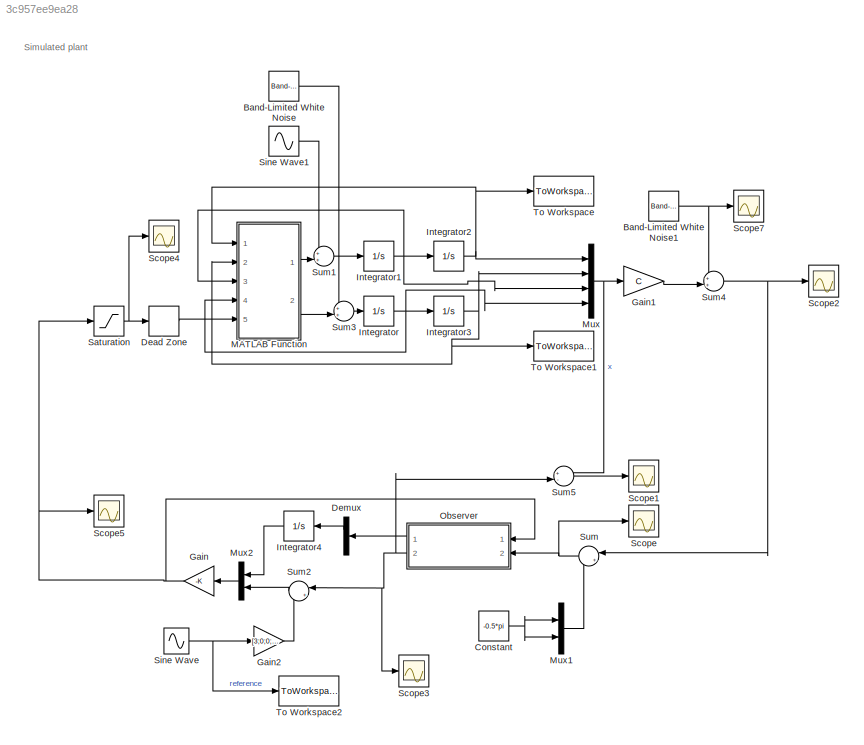
MODEL slx_3c957ee9ea28
KIND model
CONFIG AbsTol = auto
CONFIG EnableMultiTasking = on
CONFIG FixedStep = h
CONFIG MaxStep = auto
CONFIG MinStep = auto
CONFIG RelTol = 1e-3
CONFIG SampleTimeConstraint = Unconstrained
CONFIG Solver = FixedStepAuto
CONFIG SolverName = FixedStepAuto
CONFIG StartTime = 0.0
CONFIG StopTime = 200
BLOCK [Reference] Band-Limited White Noise  REF=simulink/Sources/Band-Limited
White Noise
  Ports = [0, 1]
  SourceBlock = simulink/Sources/Band-Limited\nWhite Noise
  SourceProductBaseCode = SL
  SourceProductName = Simulink
  SourceType = Band-Limited White Noise.
BLOCK [Reference] Band-Limited White Noise1  REF=simulink/Sources/Band-Limited
White Noise
  Ports = [0, 1]
  SourceBlock = simulink/Sources/Band-Limited\nWhite Noise
  SourceProductBaseCode = SL
  SourceProductName = Simulink
  SourceType = Band-Limited White Noise.
BLOCK [Constant] Constant
  Value = -0.5*pi
BLOCK [DeadZone] Dead Zone
  LowerValue = -0.3
  UpperValue = 0.3
BLOCK [Demux] Demux
  DisplayOption = bar
  Outputs = 2
  Ports = [1, 2]
BLOCK [Gain] Gain
  Gain = -K
  Multiplication = Matrix(K*u)
  OutDataTypeStr = Inherit: Inherit via internal rule
  ParamDataTypeStr = Inherit: Inherit via internal rule
  SaturateOnIntegerOverflow = off
BLOCK [Gain] Gain1
  Gain = C
  Multiplication = Matrix(K*u)
  OutDataTypeStr = Inherit: Inherit via internal rule
  ParamDataTypeStr = Inherit: Inherit via internal rule
  SaturateOnIntegerOverflow = off
BLOCK [Gain] Gain2
  Gain = [3;0;0;0]
  OutDataTypeStr = Inherit: Inherit via internal rule
  ParamDataTypeStr = Inherit: Inherit via internal rule
  SaturateOnIntegerOverflow = off
BLOCK [Integrator] Integrator
  InitialCondition = x0(4)
  Ports = [1, 1]
BLOCK [Integrator] Integrator1
  InitialCondition = x0(3)
  Ports = [1, 1]
BLOCK [Integrator] Integrator2
  InitialCondition = x0(1)
  Ports = [1, 1]
  WrapState = on
BLOCK [Integrator] Integrator3
  InitialCondition = x0(2)
  Ports = [1, 1]
  WrapState = on
BLOCK [Integrator] Integrator4
  Ports = [1, 1]
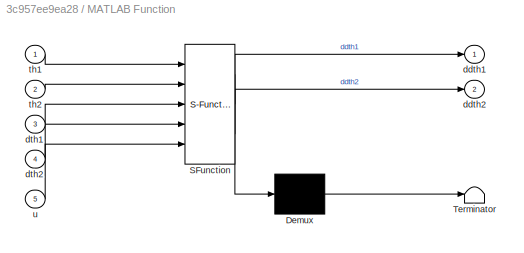
BLOCK [SubSystem] MATLAB Function
  ErrorFcn = Stateflow.Translate.translate
  PermitHierarchicalResolution = ExplicitOnly
  Ports = [5, 2]
  RequestExecContextInheritance = off
  SFBlockType = MATLAB Function
  TreatAsAtomicUnit = on
  Variant = off
BLOCK [Demux] MATLAB Function/ Demux 
  Outputs = 1
  Ports = [1, 1]
BLOCK [S-Function] MATLAB Function/ SFunction 
  EnableBusSupport = on
  FunctionName = sf_sfun
  PortCounts = [5 3]
  Ports = [5, 3]
  SFcnIsStateOwnerBlock = off
  SFunctionDeploymentMode = off
  Tag = Stateflow S-Function pendubotSim 2
BLOCK [Terminator] MATLAB Function/ Terminator 
BLOCK [Outport] MATLAB Function/ddth1
  IconDisplay = Port number
BLOCK [Outport] MATLAB Function/ddth2
  IconDisplay = Port number
  Port = 2
BLOCK [Inport] MATLAB Function/dth1
  IconDisplay = Port number
  Port = 3
BLOCK [Inport] MATLAB Function/dth2
  IconDisplay = Port number
  Port = 4
BLOCK [Inport] MATLAB Function/th1
  IconDisplay = Port number
BLOCK [Inport] MATLAB Function/th2
  IconDisplay = Port number
  Port = 2
BLOCK [Inport] MATLAB Function/u
  IconDisplay = Port number
  Port = 5
BLOCK [Mux] Mux
  DisplayOption = bar
  Ports = [4, 1]
BLOCK [Mux] Mux1
  DisplayOption = bar
  Inputs = 2
  Ports = [2, 1]
BLOCK [Mux] Mux2
  DisplayOption = bar
  Inputs = 2
  Ports = [2, 1]
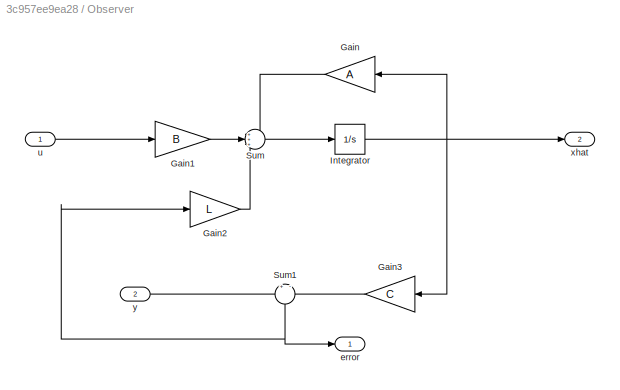
BLOCK [SubSystem] Observer
  Ports = [2, 2]
  RequestExecContextInheritance = off
  Variant = off
BLOCK [Gain] Observer/Gain
  Gain = A
  Multiplication = Matrix(K*u)
  OutDataTypeStr = Inherit: Inherit via internal rule
  ParamDataTypeStr = Inherit: Inherit via internal rule
  SaturateOnIntegerOverflow = off
BLOCK [Gain] Observer/Gain1
  Gain = B
  Multiplication = Matrix(K*u)
  OutDataTypeStr = Inherit: Inherit via internal rule
  ParamDataTypeStr = Inherit: Inherit via internal rule
  SaturateOnIntegerOverflow = off
BLOCK [Gain] Observer/Gain2
  Gain = L
  Multiplication = Matrix(K*u)
  OutDataTypeStr = Inherit: Inherit via internal rule
  ParamDataTypeStr = Inherit: Inherit via internal rule
  SaturateOnIntegerOverflow = off
BLOCK [Gain] Observer/Gain3
  Gain = C
  Multiplication = Matrix(K*u)
  OutDataTypeStr = Inherit: Inherit via internal rule
  ParamDataTypeStr = Inherit: Inherit via internal rule
  SaturateOnIntegerOverflow = off
BLOCK [Integrator] Observer/Integrator
  InitialCondition = [0 0 0 0]
  Ports = [1, 1]
BLOCK [Sum] Observer/Sum
  IconShape = round
  InputSameDT = off
  Inputs = +++
  OutDataTypeStr = Inherit: Inherit via internal rule
  Ports = [3, 1]
  SaturateOnIntegerOverflow = off
BLOCK [Sum] Observer/Sum1
  IconShape = round
  InputSameDT = off
  Inputs = +|-
  OutDataTypeStr = Inherit: Inherit via internal rule
  Ports = [2, 1]
  SaturateOnIntegerOverflow = off
BLOCK [Outport] Observer/error
  IconDisplay = Port number
BLOCK [Inport] Observer/u
  IconDisplay = Port number
BLOCK [Outport] Observer/xhat
  IconDisplay = Port number
  Port = 2
BLOCK [Inport] Observer/y
  IconDisplay = Port number
  Port = 2
BLOCK [Saturate] Saturation
  InputPortMap = u0
  LowerLimit = -1
  Ports = [1, 1]
  UpperLimit = 1
BLOCK [Scope] Scope
  NumInputPorts = 1
  Ports = [1]
  ScopeSpecificationString = Simulink.scopes.TimeScopeBlockCfg('CurrentConfiguration', extmgr.ConfigurationSet(extmgr.Configuration('Core','General UI',true),extmgr.Configuration('Core','Source UI',true),extmgr.Configuration('Sources','WiredSimulink',true),extmgr.Configuration('Visuals','Time Domain',true,'SerializedDisplays',{struct('MinYLimReal','-5.4584','MaxYLimReal','2.20823','YLabelReal','','MinYLimMag','0.00000','MaxYL...<+1428ch>
BLOCK [Scope] Scope1
  NumInputPorts = 1
  Ports = [1]
  ScopeSpecificationString = Simulink.scopes.TimeScopeBlockCfg('CurrentConfiguration', extmgr.ConfigurationSet(extmgr.Configuration('Core','General UI',true),extmgr.Configuration('Core','Source UI',true),extmgr.Configuration('Sources','WiredSimulink',true,'DataLoggingVariableName','ScopeData1'),extmgr.Configuration('Visuals','Time Domain',true,'SerializedDisplays',{struct('MinYLimReal','-32.60229','MaxYLimReal','45.84456','YL...<+1496ch>
BLOCK [Scope] Scope2
  NumInputPorts = 1
  Ports = [1]
  ScopeSpecificationString = Simulink.scopes.TimeScopeBlockCfg('CurrentConfiguration', extmgr.ConfigurationSet(extmgr.Configuration('Core','General UI',true),extmgr.Configuration('Core','Source UI',true),extmgr.Configuration('Sources','WiredSimulink',true,'DataLoggingVariableName','ScopeData2'),extmgr.Configuration('Visuals','Time Domain',true,'SerializedDisplays',{struct('MinYLimReal','-0.37984','MaxYLimReal','2.66917','YLab...<+1473ch>
BLOCK [Scope] Scope3
  NumInputPorts = 1
  Ports = [1]
  ScopeSpecificationString = Simulink.scopes.TimeScopeBlockCfg('CurrentConfiguration', extmgr.ConfigurationSet(extmgr.Configuration('Core','General UI',true),extmgr.Configuration('Core','Source UI',true),extmgr.Configuration('Sources','WiredSimulink',true,'DataLoggingVariableName','ScopeData3'),extmgr.Configuration('Visuals','Time Domain',true,'SerializedDisplays',{struct('MinYLimReal','-22.33268','MaxYLimReal','14.10594','YL...<+1521ch>
BLOCK [Scope] Scope4
  NumInputPorts = 1
  Ports = [1]
  ScopeSpecificationString = Simulink.scopes.TimeScopeBlockCfg('CurrentConfiguration', extmgr.ConfigurationSet(extmgr.Configuration('Core','General UI',true),extmgr.Configuration('Core','Source UI',true),extmgr.Configuration('Sources','WiredSimulink',true,'DataLoggingVariableName','ScopeData1'),extmgr.Configuration('Visuals','Time Domain',true,'SerializedDisplays',{struct('MinYLimReal','-1.25','MaxYLimReal','1.25','YLabelReal...<+1450ch>
BLOCK [Scope] Scope5
  NumInputPorts = 1
  Ports = [1]
  ScopeSpecificationString = Simulink.scopes.TimeScopeBlockCfg('CurrentConfiguration', extmgr.ConfigurationSet(extmgr.Configuration('Core','General UI',true),extmgr.Configuration('Core','Source UI',true),extmgr.Configuration('Sources','WiredSimulink',true,'DataLoggingVariableName','ScopeData2'),extmgr.Configuration('Visuals','Time Domain',true,'SerializedDisplays',{struct('MinYLimReal','-1.99765','MaxYLimReal','1.01884','YLab...<+1462ch>
BLOCK [Scope] Scope7
  NumInputPorts = 1
  Ports = [1]
  ScopeSpecificationString = Simulink.scopes.TimeScopeBlockCfg('CurrentConfiguration', extmgr.ConfigurationSet(extmgr.Configuration('Core','General UI',true),extmgr.Configuration('Core','Source UI',true),extmgr.Configuration('Sources','WiredSimulink',true,'DataLoggingVariableName','ScopeData4'),extmgr.Configuration('Visuals','Time Domain',true,'SerializedDisplays',{struct('MinYLimReal','-0.08382','MaxYLimReal','0.07262','YLab...<+1483ch>
BLOCK [Sin] Sine Wave
  Amplitude = 0*pi
  Frequency = 0.1
  Ports = [0, 1]
  SampleTime = 0
BLOCK [Sin] Sine Wave1
  Frequency = 10
  Ports = [0, 1]
  SampleTime = 0
BLOCK [Sum] Sum
  IconShape = round
  InputSameDT = off
  Inputs = |+-
  OutDataTypeStr = Inherit: Inherit via internal rule
  Ports = [2, 1]
  SaturateOnIntegerOverflow = off
BLOCK [Sum] Sum1
  IconShape = round
  InputSameDT = off
  Inputs = ++|
  OutDataTypeStr = Inherit: Inherit via internal rule
  Ports = [2, 1]
  SaturateOnIntegerOverflow = off
BLOCK [Sum] Sum2
  IconShape = round
  InputSameDT = off
  Inputs = |+-
  OutDataTypeStr = Inherit: Inherit via internal rule
  Ports = [2, 1]
  SaturateOnIntegerOverflow = off
BLOCK [Sum] Sum3
  IconShape = round
  InputSameDT = off
  Inputs = ++|
  OutDataTypeStr = Inherit: Inherit via internal rule
  Ports = [2, 1]
  SaturateOnIntegerOverflow = off
BLOCK [Sum] Sum4
  IconShape = round
  InputSameDT = off
  Inputs = ++|
  OutDataTypeStr = Inherit: Inherit via internal rule
  Ports = [2, 1]
  SaturateOnIntegerOverflow = off
BLOCK [Sum] Sum5
  IconShape = round
  InputSameDT = off
  Inputs = +-|
  OutDataTypeStr = Inherit: Inherit via internal rule
  Ports = [2, 1]
  SaturateOnIntegerOverflow = off
BLOCK [ToWorkspace] To Workspace
  FixptAsFi = on
  MaxDataPoints = inf
  Ports = [1]
  SampleTime = -1
  Save2DSignal = 3-D array (concatenate along third dimension)
  VariableName = th1Sim
BLOCK [ToWorkspace] To Workspace1
  FixptAsFi = on
  MaxDataPoints = inf
  Ports = [1]
  SampleTime = -1
  Save2DSignal = 3-D array (concatenate along third dimension)
  VariableName = th2Sim
BLOCK [ToWorkspace] To Workspace2
  FixptAsFi = on
  MaxDataPoints = inf
  Ports = [1]
  SampleTime = -1
  Save2DSignal = 3-D array (concatenate along third dimension)
  VariableName = th1refSim
ANNOTATION (root): Simulated plant
NET Band-Limited White Noise1:1 -> Scope7:1, Sum4:1
LINE Band-Limited White Noise:1 -> Sum3:1
NET Constant:1 -> Mux1:1, Mux1:2
LINE Dead Zone:1 -> MATLAB Function:5
LINE Demux:1 -> Integrator4:1
LINE Gain1:1 -> Sum4:2
LINE Gain2:1 -> Sum2:2
NET Gain:1 -> Observer:1, Saturation:1, Scope5:1
NET Integrator1:1 -> Integrator2:1, MATLAB Function:3, Mux:3
NET Integrator2:1 -> MATLAB Function:1, Mux:1, To Workspace:1
NET Integrator3:1 -> MATLAB Function:2, Mux:2, To Workspace1:1
LINE Integrator4:1 -> Mux2:1
NET Integrator:1 -> Integrator3:1, MATLAB Function:4, Mux:4
LINE MATLAB Function:1 -> Sum1:2
LINE MATLAB Function:2 -> Sum3:2
LINE Mux1:1 -> Sum:2
LINE Mux2:1 -> Gain:1
NET Mux:1 -> Gain1:1, Sum5:1
LINE Observer/Gain1:1 -> Observer/Sum:2
LINE Observer/Gain2:1 -> Observer/Sum:3
LINE Observer/Gain3:1 -> Observer/Sum1:2
LINE Observer/Gain:1 -> Observer/Sum:1
NET Observer/Integrator:1 -> Observer/Gain3:1, Observer/Gain:1, Observer/xhat:1
NET Observer/Sum1:1 -> Observer/Gain2:1, Observer/error:1
LINE Observer/Sum:1 -> Observer/Integrator:1
LINE Observer/u:1 -> Observer/Gain1:1
LINE Observer/y:1 -> Observer/Sum1:1
LINE Observer:1 -> Demux:1
NET Observer:2 -> Scope3:1, Sum2:1, Sum5:2
NET Saturation:1 -> Dead Zone:1, Scope4:1
LINE Sine Wave1:1 -> Sum1:1
NET Sine Wave:1 -> Gain2:1, To Workspace2:1
LINE Sum1:1 -> Integrator1:1
LINE Sum2:1 -> Mux2:2
LINE Sum3:1 -> Integrator:1
NET Sum4:1 -> Scope2:1, Sum:1
LINE Sum5:1 -> Scope1:1
NET Sum:1 -> Observer:2, Scope:1
note: NET lines group one-source signal fan-out (src -> all destinations, sorted); 1:1 wires keep LINE
CHART MATLAB Function states=1 transitions=1
  STATE_LABEL 'eML_blk_kernel()'
  STATE_LABEL "SCRIPT:\nfunction [ddth1,ddth2] = pendubot(th1,th2,dth1,dth2,u)\n%INPUT\n% time(t), x(th1,th2,dth1,dth2)\n%OUTPUT\n% second time-derivative of theta_1(ddth1) and theta_2(ddth2)\n\n% Set params\nl1 = 0.1;\ng = 9.806; \n\nm1 = 0.18;\nm2 = 0.06;\n\nc1 = 0.06;\nc2 = 0.045;\nJ1 = 0.037;\nJ2 = 0.00011; \n\nK = 1.8;\nk1 = 0.35;\nk2 = 0.00001;\n\n% Set equ's\ng11 = m1*c1^2+m2*l1^2+J1;\ng21 = m2*l1*c2*cos(th1-th2);\ng12 = m2*l1*c2*...<+691ch>"
